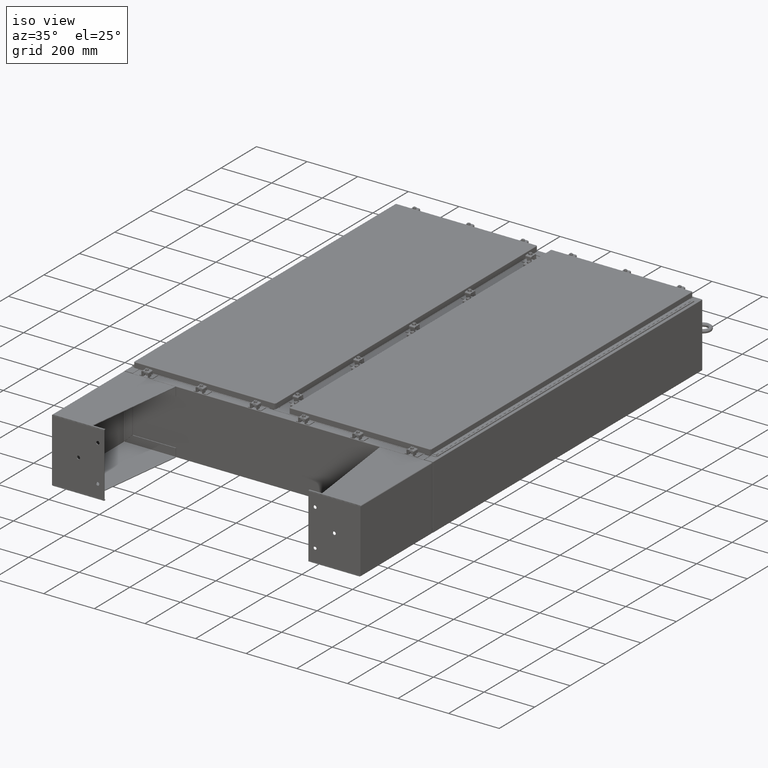
[diagram: clean part render]
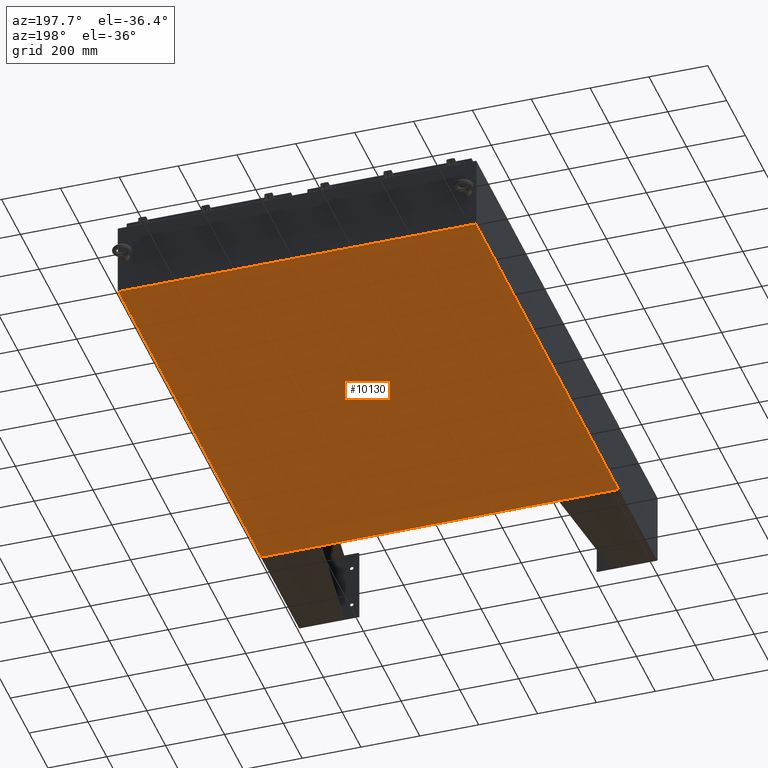
[diagram: tour spotlight — one face highlighted and labeled with its STEP entity id]
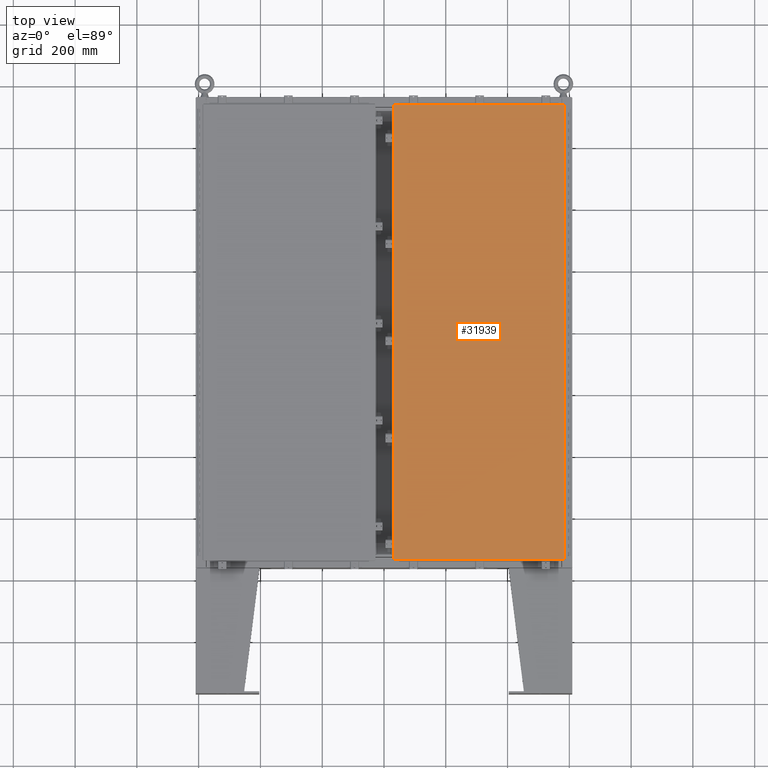
[diagram: tour spotlight — one face highlighted and labeled with its STEP entity id]
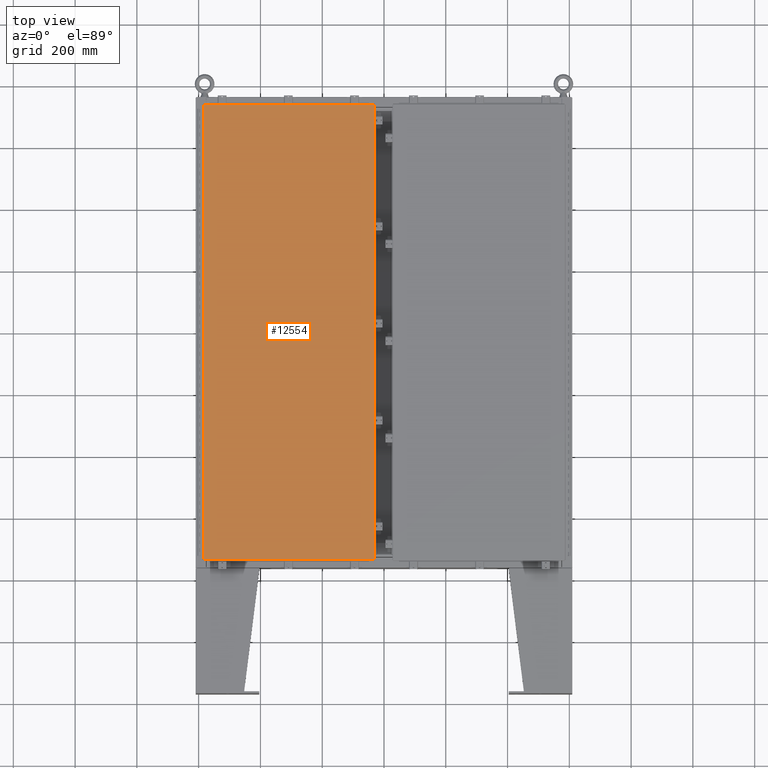
[diagram: tour spotlight — one face highlighted and labeled with its STEP entity id]
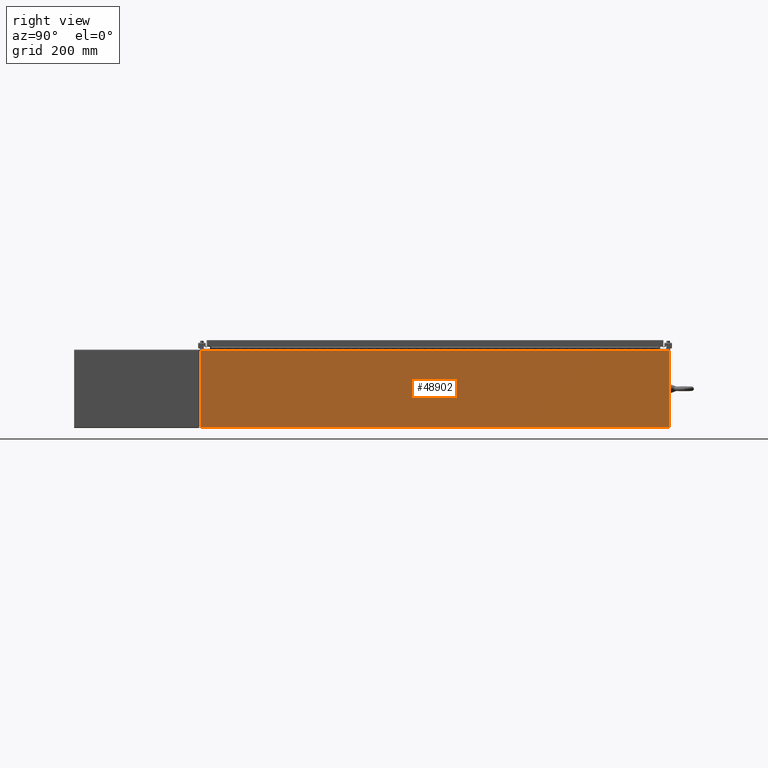
[diagram: tour spotlight — one face highlighted and labeled with its STEP entity id]
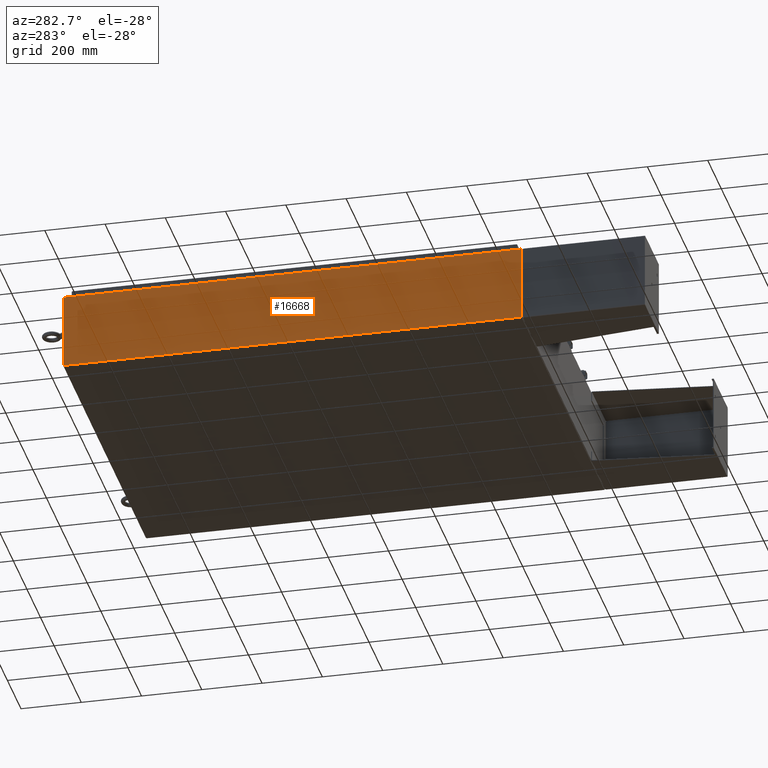
[diagram: tour spotlight — one face highlighted and labeled with its STEP entity id]
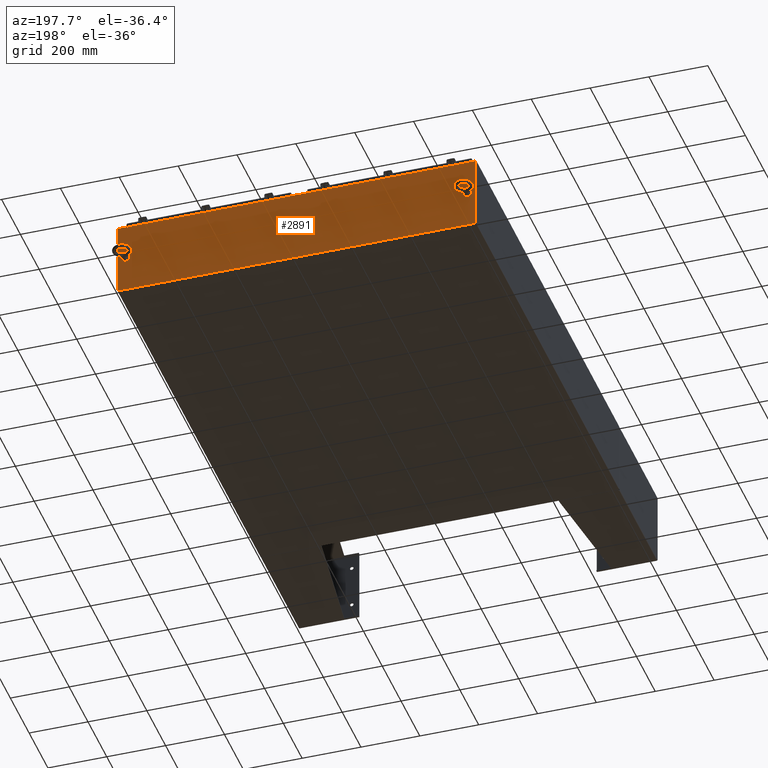
[diagram: tour spotlight — one face highlighted and labeled with its STEP entity id]
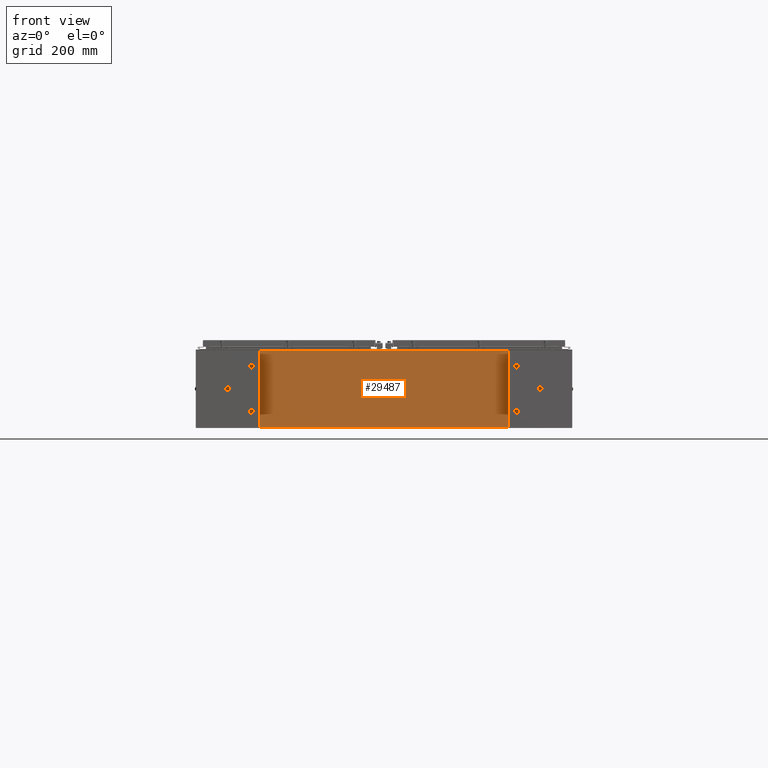
[diagram: tour spotlight — one face highlighted and labeled with its STEP entity id]
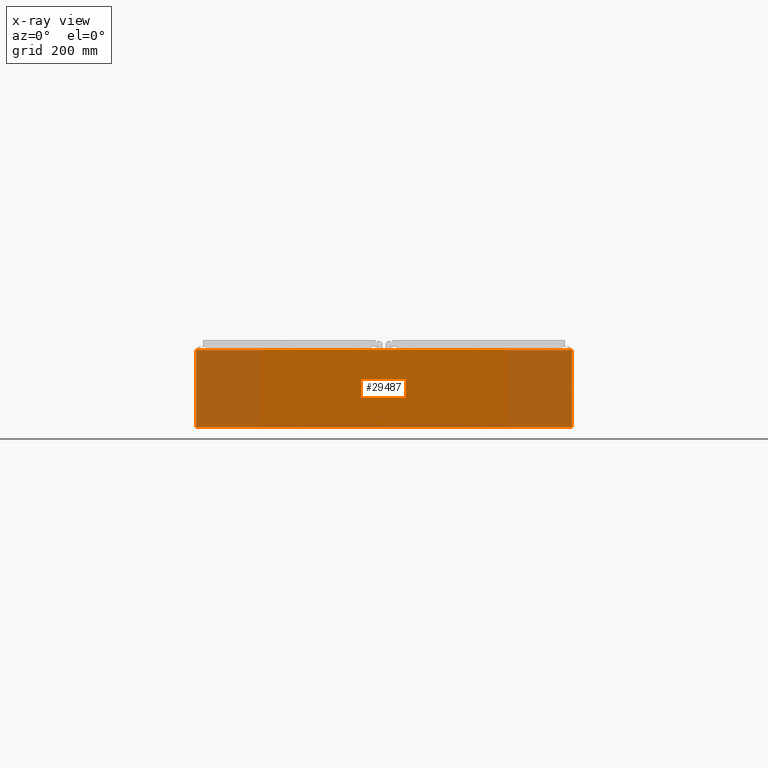
[diagram: x-ray of the same camera — body ghosted, this tour face saturated]
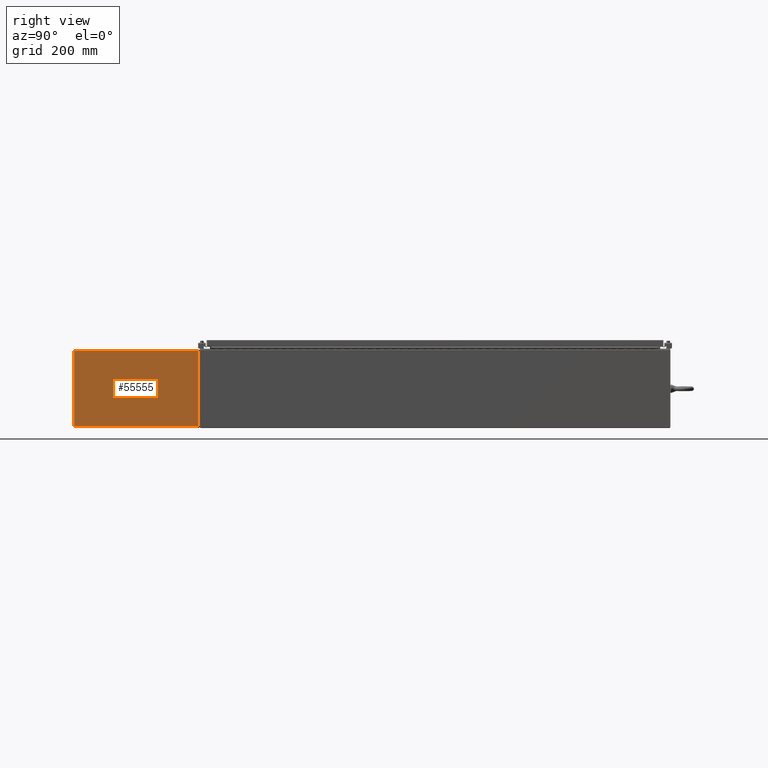
[diagram: tour spotlight — one face highlighted and labeled with its STEP entity id]
A machine part: a face-by-face anatomy tour. The part has 6348 B-rep faces; the first image is the clean iso view, then the 8 largest visible faces are spotlighted one at a time (largest first), each with its STEP entity span.

Face 1 — auxiliary view, entity #10130. In plain terms, the highlighted planar face has unit normal (0, 0, -1).
Definition (entity closure, byte-faithful):
#5577 = VECTOR ( 'NONE', #37959, 39.37007874015748100 ) ;
#5719 = VECTOR ( 'NONE', #44782, 39.37007874015748100 ) ;
#7950 = CARTESIAN_POINT ( 'NONE',  ( 23.91230000000000200, 29.92529999999999300, -0.07469999999999994700 ) ) ;
#8265 = AXIS2_PLACEMENT_3D ( 'NONE', #20712, #57594, #26036 ) ;
#10130 = ADVANCED_FACE ( 'NONE', ( #41501 ), #52277, .T. ) ;
#15097 = CARTESIAN_POINT ( 'NONE',  ( -24.00000000000000700, -29.92530000000000400, -0.07470000000000000300 ) ) ;
#15761 = VERTEX_POINT ( 'NONE', #40204 ) ;
#20712 = CARTESIAN_POINT ( 'NONE',  ( 0.0000000000000000000, 0.0000000000000000000, -0.07470000000000000300 ) ) ;
#21751 = CARTESIAN_POINT ( 'NONE',  ( 23.91229999999998800, -29.92530000000000400, -0.07470000000000000300 ) ) ;
#22023 = CARTESIAN_POINT ( 'NONE',  ( -24.00000000000000700, 29.92529999999999300, -0.07470000000000000300 ) ) ;
#23685 = LINE ( 'NONE', #15097, #60765 ) ;
#26036 = DIRECTION ( 'NONE',  ( -1.000000000000000000, 0.0000000000000000000, -0.0000000000000000000 ) ) ;
#28905 = ORIENTED_EDGE ( 'NONE', *, *, #40077, .F. ) ;
#30545 = ORIENTED_EDGE ( 'NONE', *, *, #53410, .T. ) ;
#35243 = VECTOR ( 'NONE', #37978, 39.37007874015748100 ) ;
#37755 = CARTESIAN_POINT ( 'NONE',  ( -23.91230000000000900, -29.92529999999999300, -0.07469999999999994700 ) ) ;
#37959 = DIRECTION ( 'NONE',  ( -1.000000000000000000, -0.0000000000000000000, -0.0000000000000000000 ) ) ;
#37978 = DIRECTION ( 'NONE',  ( -0.0000000000000000000, 1.000000000000000000, -0.0000000000000000000 ) ) ;
#40077 = EDGE_CURVE ( 'NONE', #40447, #61800, #23685, .T. ) ;
#40204 = CARTESIAN_POINT ( 'NONE',  ( -23.91230000000000900, 29.92529999999998600, -0.07470000000000000300 ) ) ;
#40447 = VERTEX_POINT ( 'NONE', #44553 ) ;
#41501 = FACE_OUTER_BOUND ( 'NONE', #62120, .T. ) ;
#42438 = VERTEX_POINT ( 'NONE', #46666 ) ;
#44553 = CARTESIAN_POINT ( 'NONE',  ( -23.91230000000000900, -29.92529999999998600, -0.07469999999999994700 ) ) ;
#44782 = DIRECTION ( 'NONE',  ( -0.0000000000000000000, -1.000000000000000000, -0.0000000000000000000 ) ) ;
#46165 = EDGE_CURVE ( 'NONE', #42438, #15761, #47600, .T. ) ;
#46666 = CARTESIAN_POINT ( 'NONE',  ( 23.91230000000000200, 29.92529999999999300, -0.07469999999999994700 ) ) ;
#47600 = LINE ( 'NONE', #22023, #5577 ) ;
#47604 = LINE ( 'NONE', #37755, #35243 ) ;
#52277 = PLANE ( 'NONE',  #8265 ) ;
#53410 = EDGE_CURVE ( 'NONE', #42438, #61800, #58442, .T. ) ;
#54358 = EDGE_CURVE ( 'NONE', #40447, #15761, #47604, .T. ) ;
#57256 = DIRECTION ( 'NONE',  ( 1.000000000000000000, 0.0000000000000000000, 0.0000000000000000000 ) ) ;
#57594 = DIRECTION ( 'NONE',  ( 0.0000000000000000000, 0.0000000000000000000, -1.000000000000000000 ) ) ;
#58442 = LINE ( 'NONE', #7950, #5719 ) ;
#59948 = ORIENTED_EDGE ( 'NONE', *, *, #46165, .F. ) ;
#60765 = VECTOR ( 'NONE', #57256, 39.37007874015748100 ) ;
#61800 = VERTEX_POINT ( 'NONE', #21751 ) ;
#62120 = EDGE_LOOP ( 'NONE', ( #28905, #64825, #59948, #30545 ) ) ;
#64825 = ORIENTED_EDGE ( 'NONE', *, *, #54358, .T. ) ;

Face 2 — top view, entity #31939. In plain terms, the highlighted planar face has unit normal (0, 0, -1).
Definition (entity closure, byte-faithful):
#1658 = DIRECTION ( 'NONE',  ( -1.000000000000000000, -0.0000000000000000000, -0.0000000000000000000 ) ) ;
#10238 = EDGE_CURVE ( 'NONE', #12918, #35232, #33214, .T. ) ;
#10392 = ORIENTED_EDGE ( 'NONE', *, *, #40284, .T. ) ;
#10519 = LINE ( 'NONE', #48020, #50837 ) ;
#11041 = DIRECTION ( 'NONE',  ( -1.000000000000000000, 0.0000000000000000000, -0.0000000000000000000 ) ) ;
#12833 = VECTOR ( 'NONE', #65583, 39.37007874015748100 ) ;
#12918 = VERTEX_POINT ( 'NONE', #55380 ) ;
#18310 = EDGE_CURVE ( 'NONE', #35232, #52287, #26821, .T. ) ;
#19528 = CARTESIAN_POINT ( 'NONE',  ( 10.91779999999999600, -29.01819999999999300, 0.0000000000000000000 ) ) ;
#21776 = VERTEX_POINT ( 'NONE', #43249 ) ;
#26821 = LINE ( 'NONE', #33815, #12833 ) ;
#29089 = EDGE_LOOP ( 'NONE', ( #58336, #10392, #42927, #45543 ) ) ;
#30281 = VECTOR ( 'NONE', #1658, 39.37007874015748100 ) ;
#31939 = ADVANCED_FACE ( 'NONE', ( #55050 ), #58219, .F. ) ;
#31974 = CARTESIAN_POINT ( 'NONE',  ( 0.0000000000000000000, 0.0000000000000000000, 0.0000000000000000000 ) ) ;
#33214 = LINE ( 'NONE', #53411, #48864 ) ;
#33815 = CARTESIAN_POINT ( 'NONE',  ( -10.91780000000000200, -29.01820000000000000, 2.185478394931410600E-015 ) ) ;
#35232 = VERTEX_POINT ( 'NONE', #57996 ) ;
#40284 = EDGE_CURVE ( 'NONE', #52287, #21776, #10519, .T. ) ;
#42571 = DIRECTION ( 'NONE',  ( 0.0000000000000000000, 0.0000000000000000000, -1.000000000000000000 ) ) ;
#42927 = ORIENTED_EDGE ( 'NONE', *, *, #60697, .T. ) ;
#43249 = CARTESIAN_POINT ( 'NONE',  ( 10.91779999999999600, 29.01820000000000700, 2.185478394931410600E-015 ) ) ;
#43824 = CARTESIAN_POINT ( 'NONE',  ( 10.91779999999999600, 29.01820000000000700, 2.185478394931410600E-015 ) ) ;
#45543 = ORIENTED_EDGE ( 'NONE', *, *, #10238, .T. ) ;
#48020 = CARTESIAN_POINT ( 'NONE',  ( 10.91779999999999600, -29.01819999999999000, 0.0000000000000000000 ) ) ;
#48864 = VECTOR ( 'NONE', #58502, 39.37007874015748100 ) ;
#50837 = VECTOR ( 'NONE', #53290, 39.37007874015748100 ) ;
#52287 = VERTEX_POINT ( 'NONE', #19528 ) ;
#53290 = DIRECTION ( 'NONE',  ( 0.0000000000000000000, 1.000000000000000000, 0.0000000000000000000 ) ) ;
#53411 = CARTESIAN_POINT ( 'NONE',  ( -10.91780000000000200, 29.01820000000000000, 0.0000000000000000000 ) ) ;
#55050 = FACE_OUTER_BOUND ( 'NONE', #29089, .T. ) ;
#55380 = CARTESIAN_POINT ( 'NONE',  ( -10.91780000000000200, 29.01820000000000400, 0.0000000000000000000 ) ) ;
#57996 = CARTESIAN_POINT ( 'NONE',  ( -10.91780000000000200, -29.01820000000000000, 2.185478394931410600E-015 ) ) ;
#58219 = PLANE ( 'NONE',  #64199 ) ;
#58336 = ORIENTED_EDGE ( 'NONE', *, *, #18310, .T. ) ;
#58502 = DIRECTION ( 'NONE',  ( 0.0000000000000000000, -1.000000000000000000, 0.0000000000000000000 ) ) ;
#59927 = LINE ( 'NONE', #43824, #30281 ) ;
#60697 = EDGE_CURVE ( 'NONE', #21776, #12918, #59927, .T. ) ;
#64199 = AXIS2_PLACEMENT_3D ( 'NONE', #31974, #42571, #11041 ) ;
#65583 = DIRECTION ( 'NONE',  ( 1.000000000000000000, -0.0000000000000000000, -0.0000000000000000000 ) ) ;

Face 3 — top view, entity #12554. In plain terms, the highlighted planar face has unit normal (0, 0, -1).
Definition (entity closure, byte-faithful):
#1624 = DIRECTION ( 'NONE',  ( 0.0000000000000000000, 0.0000000000000000000, -1.000000000000000000 ) ) ;
#1834 = VERTEX_POINT ( 'NONE', #14908 ) ;
#1840 = CARTESIAN_POINT ( 'NONE',  ( -10.91780000000000500, -29.01820000000000000, 2.185478394931410600E-015 ) ) ;
#5972 = LINE ( 'NONE', #31243, #32326 ) ;
#6333 = AXIS2_PLACEMENT_3D ( 'NONE', #12001, #1624, #38484 ) ;
#6521 = VERTEX_POINT ( 'NONE', #57400 ) ;
#7942 = EDGE_LOOP ( 'NONE', ( #18189, #44305, #29170, #13883 ) ) ;
#9417 = EDGE_CURVE ( 'NONE', #42273, #55471, #23409, .T. ) ;
#12001 = CARTESIAN_POINT ( 'NONE',  ( 0.0000000000000000000, 0.0000000000000000000, 0.0000000000000000000 ) ) ;
#12554 = ADVANCED_FACE ( 'NONE', ( #39540 ), #64686, .F. ) ;
#13883 = ORIENTED_EDGE ( 'NONE', *, *, #9417, .T. ) ;
#14908 = CARTESIAN_POINT ( 'NONE',  ( 10.91779999999999800, -29.01819999999999300, 0.0000000000000000000 ) ) ;
#18189 = ORIENTED_EDGE ( 'NONE', *, *, #21964, .T. ) ;
#20613 = CARTESIAN_POINT ( 'NONE',  ( 10.91779999999999800, 29.01820000000000700, 2.185478394931410600E-015 ) ) ;
#20905 = VECTOR ( 'NONE', #36321, 39.37007874015748100 ) ;
#21964 = EDGE_CURVE ( 'NONE', #55471, #1834, #36480, .T. ) ;
#23409 = LINE ( 'NONE', #61732, #63797 ) ;
#24088 = VECTOR ( 'NONE', #24779, 39.37007874015748100 ) ;
#24779 = DIRECTION ( 'NONE',  ( 1.000000000000000000, -0.0000000000000000000, -0.0000000000000000000 ) ) ;
#25922 = DIRECTION ( 'NONE',  ( 0.0000000000000000000, 1.000000000000000000, 0.0000000000000000000 ) ) ;
#29170 = ORIENTED_EDGE ( 'NONE', *, *, #55851, .T. ) ;
#29635 = CARTESIAN_POINT ( 'NONE',  ( -10.91780000000000500, 29.01820000000000400, 0.0000000000000000000 ) ) ;
#31243 = CARTESIAN_POINT ( 'NONE',  ( 10.91779999999999800, -29.01819999999999000, 0.0000000000000000000 ) ) ;
#32326 = VECTOR ( 'NONE', #25922, 39.37007874015748100 ) ;
#36321 = DIRECTION ( 'NONE',  ( -1.000000000000000000, -0.0000000000000000000, -0.0000000000000000000 ) ) ;
#36480 = LINE ( 'NONE', #61629, #24088 ) ;
#38484 = DIRECTION ( 'NONE',  ( -1.000000000000000000, 0.0000000000000000000, -0.0000000000000000000 ) ) ;
#39540 = FACE_OUTER_BOUND ( 'NONE', #7942, .T. ) ;
#42273 = VERTEX_POINT ( 'NONE', #29635 ) ;
#42477 = EDGE_CURVE ( 'NONE', #1834, #6521, #5972, .T. ) ;
#44305 = ORIENTED_EDGE ( 'NONE', *, *, #42477, .T. ) ;
#48945 = LINE ( 'NONE', #20613, #20905 ) ;
#55471 = VERTEX_POINT ( 'NONE', #1840 ) ;
#55851 = EDGE_CURVE ( 'NONE', #6521, #42273, #48945, .T. ) ;
#56436 = DIRECTION ( 'NONE',  ( 0.0000000000000000000, -1.000000000000000000, 0.0000000000000000000 ) ) ;
#57400 = CARTESIAN_POINT ( 'NONE',  ( 10.91779999999999800, 29.01820000000000700, 2.185478394931410600E-015 ) ) ;
#61629 = CARTESIAN_POINT ( 'NONE',  ( -10.91780000000000500, -29.01820000000000000, 2.185478394931410600E-015 ) ) ;
#61732 = CARTESIAN_POINT ( 'NONE',  ( -10.91780000000000500, 29.01820000000000000, 0.0000000000000000000 ) ) ;
#63797 = VECTOR ( 'NONE', #56436, 39.37007874015748100 ) ;
#64686 = PLANE ( 'NONE',  #6333 ) ;

Face 4 — right view, entity #48902. In plain terms, the highlighted planar face has unit normal (-1, -0, 0).
Definition (entity closure, byte-faithful):
#2607 = VERTEX_POINT ( 'NONE', #64067 ) ;
#2704 = DIRECTION ( 'NONE',  ( -0.0000000000000000000, -1.000000000000000000, -0.0000000000000000000 ) ) ;
#2823 = CARTESIAN_POINT ( 'NONE',  ( 24.00000000000003200, -29.92529999999998900, 9.837599999999991200 ) ) ;
#5668 = CARTESIAN_POINT ( 'NONE',  ( 23.99999999999999600, -29.92529999999999300, -8.545600010695486900E-014 ) ) ;
#10114 = DIRECTION ( 'NONE',  ( 1.296229272977838700E-031, -1.000000000000000000, -4.525760317464326200E-046 ) ) ;
#13638 = CARTESIAN_POINT ( 'NONE',  ( 23.99999999999999600, 29.92529999999998900, 0.01299999999999766100 ) ) ;
#13711 = EDGE_CURVE ( 'NONE', #63970, #43916, #26137, .T. ) ;
#16335 = CARTESIAN_POINT ( 'NONE',  ( 23.99999999999999600, -29.92529999999999300, 0.01299999999999765100 ) ) ;
#20096 = EDGE_CURVE ( 'NONE', #47183, #43916, #48839, .T. ) ;
#20786 = VECTOR ( 'NONE', #10114, 39.37007874015748100 ) ;
#23984 = CARTESIAN_POINT ( 'NONE',  ( 23.99999999999999600, 3.110950255146812600E-030, -8.545600010695486900E-014 ) ) ;
#26137 = LINE ( 'NONE', #5668, #66521 ) ;
#26344 = VECTOR ( 'NONE', #66217, 39.37007874015748100 ) ;
#29316 = DIRECTION ( 'NONE',  ( 3.549799435455970600E-015, 0.0000000000000000000, 1.000000000000000000 ) ) ;
#30826 = ORIENTED_EDGE ( 'NONE', *, *, #68043, .T. ) ;
#31746 = LINE ( 'NONE', #34234, #44120 ) ;
#34234 = CARTESIAN_POINT ( 'NONE',  ( 24.00000000000005000, 29.92530000000000000, 9.837599999999998300 ) ) ;
#34659 = CARTESIAN_POINT ( 'NONE',  ( 23.99999999999999600, 29.92529999999998600, -9.873460173768618300E-014 ) ) ;
#41034 = ORIENTED_EDGE ( 'NONE', *, *, #65235, .T. ) ;
#41427 = CARTESIAN_POINT ( 'NONE',  ( 23.99999999999999600, -29.92529999999999300, 0.01299999999999766100 ) ) ;
#42036 = LINE ( 'NONE', #34659, #26344 ) ;
#43916 = VERTEX_POINT ( 'NONE', #16335 ) ;
#44120 = VECTOR ( 'NONE', #2704, 39.37007874015748100 ) ;
#46608 = FACE_OUTER_BOUND ( 'NONE', #48906, .T. ) ;
#47183 = VERTEX_POINT ( 'NONE', #13638 ) ;
#48839 = LINE ( 'NONE', #41427, #20786 ) ;
#48902 = ADVANCED_FACE ( 'NONE', ( #46608 ), #55551, .F. ) ;
#48906 = EDGE_LOOP ( 'NONE', ( #30826, #56068, #53972, #41034 ) ) ;
#53972 = ORIENTED_EDGE ( 'NONE', *, *, #20096, .F. ) ;
#55551 = PLANE ( 'NONE',  #65479 ) ;
#56068 = ORIENTED_EDGE ( 'NONE', *, *, #13711, .T. ) ;
#60834 = DIRECTION ( 'NONE',  ( -1.000000000000000000, -1.296229272977838700E-031, 3.549799435455970600E-015 ) ) ;
#63675 = DIRECTION ( 'NONE',  ( -3.549799435455971000E-015, 0.0000000000000000000, -1.000000000000000000 ) ) ;
#63970 = VERTEX_POINT ( 'NONE', #2823 ) ;
#64067 = CARTESIAN_POINT ( 'NONE',  ( 24.00000000000005000, 29.92530000000000000, 9.837599999999998300 ) ) ;
#65235 = EDGE_CURVE ( 'NONE', #47183, #2607, #42036, .T. ) ;
#65479 = AXIS2_PLACEMENT_3D ( 'NONE', #23984, #60834, #29316 ) ;
#66217 = DIRECTION ( 'NONE',  ( 3.549799435455971000E-015, 4.437249294319963200E-016, 1.000000000000000000 ) ) ;
#66521 = VECTOR ( 'NONE', #63675, 39.37007874015748100 ) ;
#68043 = EDGE_CURVE ( 'NONE', #2607, #63970, #31746, .T. ) ;

Face 5 — auxiliary view, entity #16668. In plain terms, the highlighted planar face has unit normal (1, 0, 0).
Definition (entity closure, byte-faithful):
#631 = LINE ( 'NONE', #6041, #39376 ) ;
#5235 = VECTOR ( 'NONE', #57515, 39.37007874015748100 ) ;
#6041 = CARTESIAN_POINT ( 'NONE',  ( -24.00000000000000700, 29.92529999999998600, 0.01299999999999766100 ) ) ;
#8409 = CARTESIAN_POINT ( 'NONE',  ( -24.00000000000004300, 29.92529999999998200, 9.837599999999994800 ) ) ;
#8662 = EDGE_CURVE ( 'NONE', #65906, #43314, #26003, .T. ) ;
#12015 = VECTOR ( 'NONE', #18515, 39.37007874015748100 ) ;
#14387 = EDGE_LOOP ( 'NONE', ( #40972, #21909, #26436, #43107 ) ) ;
#16658 = DIRECTION ( 'NONE',  ( 3.549799435455969400E-015, 0.0000000000000000000, -1.000000000000000000 ) ) ;
#16668 = ADVANCED_FACE ( 'NONE', ( #17940 ), #50127, .F. ) ;
#17054 = EDGE_CURVE ( 'NONE', #31038, #53220, #24496, .T. ) ;
#17940 = FACE_OUTER_BOUND ( 'NONE', #14387, .T. ) ;
#18515 = DIRECTION ( 'NONE',  ( -3.549799435455969400E-015, 4.437249294319962300E-016, 1.000000000000000000 ) ) ;
#21573 = EDGE_CURVE ( 'NONE', #43314, #31038, #57944, .T. ) ;
#21909 = ORIENTED_EDGE ( 'NONE', *, *, #17054, .T. ) ;
#24496 = LINE ( 'NONE', #53512, #36891 ) ;
#26003 = LINE ( 'NONE', #34208, #12015 ) ;
#26436 = ORIENTED_EDGE ( 'NONE', *, *, #45601, .F. ) ;
#29198 = DIRECTION ( 'NONE',  ( 1.000000000000000000, 0.0000000000000000000, 3.549799435455969400E-015 ) ) ;
#31038 = VERTEX_POINT ( 'NONE', #8409 ) ;
#32284 = DIRECTION ( 'NONE',  ( -0.0000000000000000000, 1.000000000000000000, -0.0000000000000000000 ) ) ;
#34208 = CARTESIAN_POINT ( 'NONE',  ( -24.00000000000000700, -29.92529999999999300, -7.217739847622355500E-014 ) ) ;
#34255 = CARTESIAN_POINT ( 'NONE',  ( -24.00000000000000700, 0.0000000000000000000, -8.545600010695485700E-014 ) ) ;
#36581 = CARTESIAN_POINT ( 'NONE',  ( -24.00000000000005300, -29.92529999999998900, 9.837599999999994800 ) ) ;
#36891 = VECTOR ( 'NONE', #16658, 39.37007874015748100 ) ;
#39376 = VECTOR ( 'NONE', #32284, 39.37007874015748100 ) ;
#40972 = ORIENTED_EDGE ( 'NONE', *, *, #21573, .T. ) ;
#42962 = CARTESIAN_POINT ( 'NONE',  ( -24.00000000000000700, 29.92529999999998600, 0.01299999999999765100 ) ) ;
#43107 = ORIENTED_EDGE ( 'NONE', *, *, #8662, .T. ) ;
#43314 = VERTEX_POINT ( 'NONE', #59904 ) ;
#45601 = EDGE_CURVE ( 'NONE', #65906, #53220, #631, .T. ) ;
#47585 = AXIS2_PLACEMENT_3D ( 'NONE', #34255, #29198, #66026 ) ;
#50127 = PLANE ( 'NONE',  #47585 ) ;
#53220 = VERTEX_POINT ( 'NONE', #42962 ) ;
#53512 = CARTESIAN_POINT ( 'NONE',  ( -24.00000000000000700, 29.92529999999998600, -8.545600010695485700E-014 ) ) ;
#55749 = CARTESIAN_POINT ( 'NONE',  ( -24.00000000000000700, -29.92529999999998900, 0.01299999999999766100 ) ) ;
#57515 = DIRECTION ( 'NONE',  ( 0.0000000000000000000, 1.000000000000000000, 0.0000000000000000000 ) ) ;
#57944 = LINE ( 'NONE', #36581, #5235 ) ;
#59904 = CARTESIAN_POINT ( 'NONE',  ( -24.00000000000005300, -29.92529999999998900, 9.837599999999994800 ) ) ;
#65906 = VERTEX_POINT ( 'NONE', #55749 ) ;
#66026 = DIRECTION ( 'NONE',  ( 3.549799435455969400E-015, 0.0000000000000000000, -1.000000000000000000 ) ) ;

Face 6 — auxiliary view, entity #2891. In plain terms, the highlighted planar face has unit normal (0, -1, 0).
Definition (entity closure, byte-faithful):
#47 = CIRCLE ( 'NONE', #56334, 0.3750000000000008300 ) ;
#782 = FACE_BOUND ( 'NONE', #25194, .T. ) ;
#1462 = VERTEX_POINT ( 'NONE', #7672 ) ;
#2070 = CARTESIAN_POINT ( 'NONE',  ( 23.92529999999998600, 0.0000000000000000000, 4.925300000000000000 ) ) ;
#2202 = EDGE_CURVE ( 'NONE', #1462, #56028, #47, .T. ) ;
#2410 = VERTEX_POINT ( 'NONE', #30985 ) ;
#2447 = DIRECTION ( 'NONE',  ( 0.0000000000000000000, 1.000000000000000000, 0.0000000000000000000 ) ) ;
#2891 = ADVANCED_FACE ( 'NONE', ( #782, #55128, #42809 ), #60610, .F. ) ;
#3040 = DIRECTION ( 'NONE',  ( 1.000000000000000000, 0.0000000000000000000, 0.0000000000000000000 ) ) ;
#4133 = CARTESIAN_POINT ( 'NONE',  ( 22.86330000000001300, 0.0000000000000000000, -0.3750000000000008300 ) ) ;
#5283 = DIRECTION ( 'NONE',  ( -0.0000000000000000000, -0.0000000000000000000, 1.000000000000000000 ) ) ;
#5439 = DIRECTION ( 'NONE',  ( 0.0000000000000000000, 0.0000000000000000000, -1.000000000000000000 ) ) ;
#6452 = DIRECTION ( 'NONE',  ( 0.0000000000000000000, 0.0000000000000000000, 1.000000000000000000 ) ) ;
#7265 = AXIS2_PLACEMENT_3D ( 'NONE', #57068, #25501, #62354 ) ;
#7497 = DIRECTION ( 'NONE',  ( 1.000000000000000000, 0.0000000000000000000, 0.0000000000000000000 ) ) ;
#7672 = CARTESIAN_POINT ( 'NONE',  ( -22.86330000000001300, 0.0000000000000000000, -0.3750000000000008300 ) ) ;
#7683 = EDGE_CURVE ( 'NONE', #22449, #19023, #27771, .T. ) ;
#8072 = VECTOR ( 'NONE', #6452, 39.37007874015748100 ) ;
#8086 = VERTEX_POINT ( 'NONE', #16366 ) ;
#8372 = CARTESIAN_POINT ( 'NONE',  ( 0.0000000000000000000, 0.0000000000000000000, 0.0000000000000000000 ) ) ;
#8732 = VERTEX_POINT ( 'NONE', #40215 ) ;
#8745 = ORIENTED_EDGE ( 'NONE', *, *, #67841, .T. ) ;
#9462 = VECTOR ( 'NONE', #20889, 39.37007874015748100 ) ;
#10136 = CARTESIAN_POINT ( 'NONE',  ( -23.92530000000001400, 0.0000000000000000000, 4.925300000000000000 ) ) ;
#10638 = CARTESIAN_POINT ( 'NONE',  ( 22.63719999999997900, 0.0000000000000000000, 4.912300000000000100 ) ) ;
#11289 = VERTEX_POINT ( 'NONE', #43724 ) ;
#11454 = CARTESIAN_POINT ( 'NONE',  ( 22.65587499999998000, 0.0000000000000000000, 4.874950000000000100 ) ) ;
#12359 = CARTESIAN_POINT ( 'NONE',  ( -22.86330000000001300, 0.0000000000000000000, 0.3750000000000008300 ) ) ;
#13267 = EDGE_CURVE ( 'NONE', #56028, #1462, #66592, .T. ) ;
#13394 = DIRECTION ( 'NONE',  ( 0.0000000000000000000, 1.000000000000000000, -0.0000000000000000000 ) ) ;
#13578 = EDGE_CURVE ( 'NONE', #52915, #11289, #22022, .T. ) ;
#14475 = EDGE_CURVE ( 'NONE', #8732, #23379, #65125, .T. ) ;
#14586 = VERTEX_POINT ( 'NONE', #30203 ) ;
#15009 = EDGE_CURVE ( 'NONE', #61307, #8086, #34688, .T. ) ;
#16366 = CARTESIAN_POINT ( 'NONE',  ( 23.92529999999998600, 0.0000000000000000000, -4.925300000000000000 ) ) ;
#16702 = DIRECTION ( 'NONE',  ( 0.0000000000000000000, 0.0000000000000000000, -1.000000000000000000 ) ) ;
#17657 = CARTESIAN_POINT ( 'NONE',  ( 23.92529999999998600, 0.0000000000000000000, 4.925300000000000000 ) ) ;
#17861 = VECTOR ( 'NONE', #7497, 39.37007874015748100 ) ;
#17989 = CARTESIAN_POINT ( 'NONE',  ( 22.63719999999997900, 0.0000000000000000000, 0.0000000000000000000 ) ) ;
#18883 = DIRECTION ( 'NONE',  ( 0.0000000000000000000, -0.0000000000000000000, -1.000000000000000000 ) ) ;
#19023 = VERTEX_POINT ( 'NONE', #42708 ) ;
#19724 = ORIENTED_EDGE ( 'NONE', *, *, #2202, .F. ) ;
#20337 = AXIS2_PLACEMENT_3D ( 'NONE', #11454, #48280, #16702 ) ;
#20889 = DIRECTION ( 'NONE',  ( 1.000000000000000000, 0.0000000000000000000, 0.0000000000000000000 ) ) ;
#21527 = EDGE_CURVE ( 'NONE', #23379, #8732, #47244, .T. ) ;
#22022 = LINE ( 'NONE', #27366, #8072 ) ;
#22404 = CARTESIAN_POINT ( 'NONE',  ( 22.67454999999997900, 0.0000000000000000000, 0.0000000000000000000 ) ) ;
#22410 = DIRECTION ( 'NONE',  ( 0.0000000000000000000, 1.000000000000000000, 0.0000000000000000000 ) ) ;
#22449 = VERTEX_POINT ( 'NONE', #33710 ) ;
#23379 = VERTEX_POINT ( 'NONE', #4133 ) ;
#23853 = CARTESIAN_POINT ( 'NONE',  ( -23.92530000000001400, 0.0000000000000000000, 4.925300000000000000 ) ) ;
#24127 = AXIS2_PLACEMENT_3D ( 'NONE', #8372, #50452, #18883 ) ;
#25194 = EDGE_LOOP ( 'NONE', ( #34537, #35004 ) ) ;
#25501 = DIRECTION ( 'NONE',  ( 0.0000000000000000000, 1.000000000000000000, -0.0000000000000000000 ) ) ;
#26792 = CARTESIAN_POINT ( 'NONE',  ( -22.65587500000000200, 0.0000000000000000000, 4.874950000000000100 ) ) ;
#27366 = CARTESIAN_POINT ( 'NONE',  ( -22.67455000000000000, 0.0000000000000000000, 0.0000000000000000000 ) ) ;
#27534 = VERTEX_POINT ( 'NONE', #37523 ) ;
#27771 = LINE ( 'NONE', #22404, #54135 ) ;
#28492 = VECTOR ( 'NONE', #5283, 39.37007874015748100 ) ;
#30157 = LINE ( 'NONE', #23853, #28492 ) ;
#30203 = CARTESIAN_POINT ( 'NONE',  ( -23.92530000000001400, 0.0000000000000000000, -4.925300000000000000 ) ) ;
#30531 = ORIENTED_EDGE ( 'NONE', *, *, #15009, .T. ) ;
#30985 = CARTESIAN_POINT ( 'NONE',  ( 22.63719999999997900, 0.0000000000000000000, 4.874950000000000100 ) ) ;
#32105 = DIRECTION ( 'NONE',  ( 0.0000000000000000000, 0.0000000000000000000, -1.000000000000000000 ) ) ;
#32321 = LINE ( 'NONE', #66121, #58682 ) ;
#33243 = EDGE_LOOP ( 'NONE', ( #36812, #19724 ) ) ;
#33710 = CARTESIAN_POINT ( 'NONE',  ( 22.67454999999995700, 0.0000000000000000000, 4.925300000000000000 ) ) ;
#33722 = CARTESIAN_POINT ( 'NONE',  ( -22.63720000000000700, 0.0000000000000000000, 4.912300000000000100 ) ) ;
#33990 = CARTESIAN_POINT ( 'NONE',  ( -22.86330000000001300, 0.0000000000000000000, 0.0000000000000000000 ) ) ;
#34064 = VERTEX_POINT ( 'NONE', #37455 ) ;
#34537 = ORIENTED_EDGE ( 'NONE', *, *, #14475, .F. ) ;
#34606 = ORIENTED_EDGE ( 'NONE', *, *, #43315, .T. ) ;
#34688 = LINE ( 'NONE', #2070, #36346 ) ;
#34980 = ORIENTED_EDGE ( 'NONE', *, *, #47066, .F. ) ;
#35004 = ORIENTED_EDGE ( 'NONE', *, *, #21527, .F. ) ;
#35207 = EDGE_CURVE ( 'NONE', #59865, #11289, #37469, .T. ) ;
#36346 = VECTOR ( 'NONE', #59830, 39.37007874015748100 ) ;
#36812 = ORIENTED_EDGE ( 'NONE', *, *, #13267, .F. ) ;
#36919 = AXIS2_PLACEMENT_3D ( 'NONE', #44964, #13394, #50218 ) ;
#37455 = CARTESIAN_POINT ( 'NONE',  ( -22.63720000000000400, 0.0000000000000000000, 4.912300000000000100 ) ) ;
#37469 = LINE ( 'NONE', #10136, #9462 ) ;
#37523 = CARTESIAN_POINT ( 'NONE',  ( -22.63720000000000400, 0.0000000000000000000, 4.874950000000000100 ) ) ;
#38997 = DIRECTION ( 'NONE',  ( -1.000000000000000000, -0.0000000000000000000, -0.0000000000000000000 ) ) ;
#39325 = DIRECTION ( 'NONE',  ( 0.0000000000000000000, 0.0000000000000000000, 1.000000000000000000 ) ) ;
#40215 = CARTESIAN_POINT ( 'NONE',  ( 22.86330000000001300, 0.0000000000000000000, 0.3750000000000008300 ) ) ;
#40422 = EDGE_CURVE ( 'NONE', #34064, #49178, #58272, .T. ) ;
#40493 = VECTOR ( 'NONE', #38997, 39.37007874015748100 ) ;
#41844 = LINE ( 'NONE', #47560, #68176 ) ;
#42708 = CARTESIAN_POINT ( 'NONE',  ( 22.67454999999997900, 0.0000000000000000000, 4.874950000000000100 ) ) ;
#42809 = FACE_OUTER_BOUND ( 'NONE', #50013, .T. ) ;
#43016 = ORIENTED_EDGE ( 'NONE', *, *, #35207, .T. ) ;
#43315 = EDGE_CURVE ( 'NONE', #8086, #14586, #56090, .T. ) ;
#43422 = DIRECTION ( 'NONE',  ( 0.0000000000000000000, 0.0000000000000000000, -1.000000000000000000 ) ) ;
#43724 = CARTESIAN_POINT ( 'NONE',  ( -22.67455000000000000, 0.0000000000000000000, 4.925300000000000000 ) ) ;
#44964 = CARTESIAN_POINT ( 'NONE',  ( 22.86330000000001300, 0.0000000000000000000, 0.0000000000000000000 ) ) ;
#45101 = EDGE_CURVE ( 'NONE', #27534, #52915, #53380, .T. ) ;
#45764 = CARTESIAN_POINT ( 'NONE',  ( -22.67455000000000000, 0.0000000000000000000, 4.874950000000000100 ) ) ;
#46214 = CIRCLE ( 'NONE', #20337, 0.01867499999999949400 ) ;
#47066 = EDGE_CURVE ( 'NONE', #2410, #49178, #66444, .T. ) ;
#47244 = CIRCLE ( 'NONE', #7265, 0.3750000000000008300 ) ;
#47560 = CARTESIAN_POINT ( 'NONE',  ( -22.63720000000000400, 0.0000000000000000000, 0.0000000000000000000 ) ) ;
#48280 = DIRECTION ( 'NONE',  ( -0.0000000000000000000, 1.000000000000000000, -0.0000000000000000000 ) ) ;
#49178 = VERTEX_POINT ( 'NONE', #10638 ) ;
#50013 = EDGE_LOOP ( 'NONE', ( #50676, #65819, #67773, #56082, #34980, #54234, #58232, #61142, #30531, #34606, #8745, #43016 ) ) ;
#50218 = DIRECTION ( 'NONE',  ( 0.0000000000000000000, 0.0000000000000000000, -1.000000000000000000 ) ) ;
#50452 = DIRECTION ( 'NONE',  ( 0.0000000000000000000, -1.000000000000000000, 0.0000000000000000000 ) ) ;
#50676 = ORIENTED_EDGE ( 'NONE', *, *, #13578, .F. ) ;
#50746 = VECTOR ( 'NONE', #54848, 39.37007874015748100 ) ;
#52915 = VERTEX_POINT ( 'NONE', #45764 ) ;
#53094 = AXIS2_PLACEMENT_3D ( 'NONE', #53973, #22410, #59269 ) ;
#53232 = CARTESIAN_POINT ( 'NONE',  ( -23.92530000000001400, 0.0000000000000000000, 4.925300000000000000 ) ) ;
#53380 = CIRCLE ( 'NONE', #55959, 0.01867499999999949400 ) ;
#53973 = CARTESIAN_POINT ( 'NONE',  ( -22.86330000000001300, 0.0000000000000000000, 0.0000000000000000000 ) ) ;
#54135 = VECTOR ( 'NONE', #43422, 39.37007874015748100 ) ;
#54234 = ORIENTED_EDGE ( 'NONE', *, *, #64932, .F. ) ;
#54848 = DIRECTION ( 'NONE',  ( 0.0000000000000000000, 0.0000000000000000000, 1.000000000000000000 ) ) ;
#55128 = FACE_BOUND ( 'NONE', #33243, .T. ) ;
#55959 = AXIS2_PLACEMENT_3D ( 'NONE', #26792, #63638, #32105 ) ;
#56028 = VERTEX_POINT ( 'NONE', #12359 ) ;
#56082 = ORIENTED_EDGE ( 'NONE', *, *, #40422, .T. ) ;
#56090 = LINE ( 'NONE', #65188, #40493 ) ;
#56334 = AXIS2_PLACEMENT_3D ( 'NONE', #33990, #2447, #39325 ) ;
#57068 = CARTESIAN_POINT ( 'NONE',  ( 22.86330000000001300, 0.0000000000000000000, 0.0000000000000000000 ) ) ;
#58232 = ORIENTED_EDGE ( 'NONE', *, *, #7683, .F. ) ;
#58272 = LINE ( 'NONE', #33722, #17861 ) ;
#58682 = VECTOR ( 'NONE', #3040, 39.37007874015748100 ) ;
#59269 = DIRECTION ( 'NONE',  ( 0.0000000000000000000, 0.0000000000000000000, 1.000000000000000000 ) ) ;
#59830 = DIRECTION ( 'NONE',  ( 0.0000000000000000000, 0.0000000000000000000, -1.000000000000000000 ) ) ;
#59865 = VERTEX_POINT ( 'NONE', #53232 ) ;
#60610 = PLANE ( 'NONE',  #24127 ) ;
#61142 = ORIENTED_EDGE ( 'NONE', *, *, #63995, .T. ) ;
#61307 = VERTEX_POINT ( 'NONE', #17657 ) ;
#62354 = DIRECTION ( 'NONE',  ( 0.0000000000000000000, 0.0000000000000000000, -1.000000000000000000 ) ) ;
#63638 = DIRECTION ( 'NONE',  ( -0.0000000000000000000, 1.000000000000000000, -0.0000000000000000000 ) ) ;
#63995 = EDGE_CURVE ( 'NONE', #22449, #61307, #32321, .T. ) ;
#64932 = EDGE_CURVE ( 'NONE', #19023, #2410, #46214, .T. ) ;
#65125 = CIRCLE ( 'NONE', #36919, 0.3750000000000008300 ) ;
#65188 = CARTESIAN_POINT ( 'NONE',  ( -23.92530000000001400, 0.0000000000000000000, -4.925300000000000000 ) ) ;
#65819 = ORIENTED_EDGE ( 'NONE', *, *, #45101, .F. ) ;
#66121 = CARTESIAN_POINT ( 'NONE',  ( -23.92530000000001400, 0.0000000000000000000, 4.925300000000000000 ) ) ;
#66444 = LINE ( 'NONE', #17989, #50746 ) ;
#66592 = CIRCLE ( 'NONE', #53094, 0.3750000000000008300 ) ;
#66645 = EDGE_CURVE ( 'NONE', #34064, #27534, #41844, .T. ) ;
#67773 = ORIENTED_EDGE ( 'NONE', *, *, #66645, .F. ) ;
#67841 = EDGE_CURVE ( 'NONE', #14586, #59865, #30157, .T. ) ;
#68176 = VECTOR ( 'NONE', #5439, 39.37007874015748100 ) ;

Face 7 — front view, entity #29487. An x-ray twin of the same camera follows (body ghosted, this face saturated) — the face is partly hidden behind the body. In plain terms, the highlighted planar face has unit normal (-0, 1, 0).
Definition (entity closure, byte-faithful):
#478 = EDGE_CURVE ( 'NONE', #67343, #32475, #29118, .T. ) ;
#1668 = VERTEX_POINT ( 'NONE', #49250 ) ;
#2046 = DIRECTION ( 'NONE',  ( 9.721131394294625500E-032, -1.000000000000000000, 0.0000000000000000000 ) ) ;
#2340 = CIRCLE ( 'NONE', #31285, 0.01867499999999949400 ) ;
#2705 = LINE ( 'NONE', #61669, #39805 ) ;
#3986 = VECTOR ( 'NONE', #29735, 39.37007874015748100 ) ;
#4227 = VECTOR ( 'NONE', #7862, 39.37007874015748100 ) ;
#4252 = CARTESIAN_POINT ( 'NONE',  ( 23.92529999999998600, 0.0000000000000000000, -4.925300000000000000 ) ) ;
#7038 = VECTOR ( 'NONE', #10291, 39.37007874015748100 ) ;
#7650 = FACE_OUTER_BOUND ( 'NONE', #38938, .T. ) ;
#7862 = DIRECTION ( 'NONE',  ( 0.0000000000000000000, 0.0000000000000000000, 1.000000000000000000 ) ) ;
#8984 = DIRECTION ( 'NONE',  ( 1.000000000000000000, -9.721131394294623300E-032, 0.0000000000000000000 ) ) ;
#10210 = DIRECTION ( 'NONE',  ( -9.721131394294625500E-032, 1.000000000000000000, -0.0000000000000000000 ) ) ;
#10291 = DIRECTION ( 'NONE',  ( -1.000000000000000000, 9.721131394294623300E-032, 0.0000000000000000000 ) ) ;
#10304 = CARTESIAN_POINT ( 'NONE',  ( 22.63719999999997900, 0.0000000000000000000, 4.874950000000000100 ) ) ;
#10578 = EDGE_CURVE ( 'NONE', #67343, #27249, #2705, .T. ) ;
#10646 = CARTESIAN_POINT ( 'NONE',  ( -22.63720000000000700, -4.370956789862821100E-015, 4.912300000000000100 ) ) ;
#12009 = VERTEX_POINT ( 'NONE', #60168 ) ;
#12098 = ORIENTED_EDGE ( 'NONE', *, *, #29667, .T. ) ;
#12183 = VERTEX_POINT ( 'NONE', #24683 ) ;
#12388 = CARTESIAN_POINT ( 'NONE',  ( 0.0000000000000000000, 0.0000000000000000000, 0.0000000000000000000 ) ) ;
#12527 = ORIENTED_EDGE ( 'NONE', *, *, #22851, .T. ) ;
#12974 = ORIENTED_EDGE ( 'NONE', *, *, #29652, .T. ) ;
#13364 = VECTOR ( 'NONE', #66254, 39.37007874015748100 ) ;
#13735 = CARTESIAN_POINT ( 'NONE',  ( 23.92529999999998600, 0.0000000000000000000, 4.925300000000000000 ) ) ;
#15275 = LINE ( 'NONE', #22930, #53997 ) ;
#15524 = CARTESIAN_POINT ( 'NONE',  ( -23.92530000000001400, 0.0000000000000000000, -4.925300000000000000 ) ) ;
#15895 = DIRECTION ( 'NONE',  ( 1.000000000000000000, -9.721131394294625500E-032, 0.0000000000000000000 ) ) ;
#16947 = ORIENTED_EDGE ( 'NONE', *, *, #478, .F. ) ;
#19233 = DIRECTION ( 'NONE',  ( 1.000000000000000000, -9.721131394294623300E-032, 0.0000000000000000000 ) ) ;
#19826 = LINE ( 'NONE', #34077, #4227 ) ;
#20022 = CARTESIAN_POINT ( 'NONE',  ( 22.67454999999997900, 0.0000000000000000000, 0.0000000000000000000 ) ) ;
#20358 = CARTESIAN_POINT ( 'NONE',  ( 22.63719999999997900, 0.0000000000000000000, 4.912300000000000100 ) ) ;
#20513 = EDGE_CURVE ( 'NONE', #59663, #28030, #20975, .T. ) ;
#20975 = LINE ( 'NONE', #15524, #7038 ) ;
#22851 = EDGE_CURVE ( 'NONE', #34721, #54692, #34832, .T. ) ;
#22930 = CARTESIAN_POINT ( 'NONE',  ( 22.63719999999997900, 0.0000000000000000000, 0.0000000000000000000 ) ) ;
#23006 = ORIENTED_EDGE ( 'NONE', *, *, #37152, .F. ) ;
#24037 = LINE ( 'NONE', #66475, #64421 ) ;
#24275 = ORIENTED_EDGE ( 'NONE', *, *, #60198, .F. ) ;
#24683 = CARTESIAN_POINT ( 'NONE',  ( -23.92530000000001400, 0.0000000000000000000, 4.925300000000000000 ) ) ;
#26384 = VECTOR ( 'NONE', #42332, 39.37007874015748100 ) ;
#26563 = ORIENTED_EDGE ( 'NONE', *, *, #10578, .T. ) ;
#27149 = DIRECTION ( 'NONE',  ( 0.0000000000000000000, 0.0000000000000000000, -1.000000000000000000 ) ) ;
#27249 = VERTEX_POINT ( 'NONE', #29938 ) ;
#27974 = ORIENTED_EDGE ( 'NONE', *, *, #45019, .F. ) ;
#28030 = VERTEX_POINT ( 'NONE', #31006 ) ;
#28247 = DIRECTION ( 'NONE',  ( 0.0000000000000000000, 0.0000000000000000000, 1.000000000000000000 ) ) ;
#29118 = LINE ( 'NONE', #20022, #41495 ) ;
#29487 = ADVANCED_FACE ( 'NONE', ( #7650 ), #59801, .F. ) ;
#29571 = CIRCLE ( 'NONE', #51120, 0.01867499999999949400 ) ;
#29652 = EDGE_CURVE ( 'NONE', #27249, #59663, #55368, .T. ) ;
#29667 = EDGE_CURVE ( 'NONE', #12183, #1668, #24037, .T. ) ;
#29735 = DIRECTION ( 'NONE',  ( 0.0000000000000000000, 0.0000000000000000000, -1.000000000000000000 ) ) ;
#29938 = CARTESIAN_POINT ( 'NONE',  ( 23.92529999999998600, 0.0000000000000000000, 4.925300000000000000 ) ) ;
#30641 = VERTEX_POINT ( 'NONE', #10304 ) ;
#31006 = CARTESIAN_POINT ( 'NONE',  ( -23.92530000000001400, 0.0000000000000000000, -4.925300000000000000 ) ) ;
#31285 = AXIS2_PLACEMENT_3D ( 'NONE', #62964, #31440, #68237 ) ;
#31440 = DIRECTION ( 'NONE',  ( -9.721131394294625500E-032, 1.000000000000000000, -0.0000000000000000000 ) ) ;
#32475 = VERTEX_POINT ( 'NONE', #46651 ) ;
#33646 = LINE ( 'NONE', #66353, #3986 ) ;
#33693 = EDGE_CURVE ( 'NONE', #30641, #54692, #15275, .T. ) ;
#34077 = CARTESIAN_POINT ( 'NONE',  ( -22.67455000000000000, 0.0000000000000000000, 8.741913579725642300E-015 ) ) ;
#34721 = VERTEX_POINT ( 'NONE', #64246 ) ;
#34832 = LINE ( 'NONE', #10646, #59537 ) ;
#37038 = CARTESIAN_POINT ( 'NONE',  ( -23.92530000000001400, 0.0000000000000000000, 4.925300000000000000 ) ) ;
#37152 = EDGE_CURVE ( 'NONE', #12009, #1668, #19826, .T. ) ;
#37534 = EDGE_CURVE ( 'NONE', #28030, #12183, #66776, .T. ) ;
#38899 = DIRECTION ( 'NONE',  ( 0.0000000000000000000, 0.0000000000000000000, -1.000000000000000000 ) ) ;
#38938 = EDGE_LOOP ( 'NONE', ( #23006, #63782, #24275, #12527, #48561, #27974, #16947, #26563, #12974, #58009, #40596, #12098 ) ) ;
#39105 = VERTEX_POINT ( 'NONE', #53909 ) ;
#39805 = VECTOR ( 'NONE', #8984, 39.37007874015748100 ) ;
#40596 = ORIENTED_EDGE ( 'NONE', *, *, #37534, .T. ) ;
#41495 = VECTOR ( 'NONE', #27149, 39.37007874015748100 ) ;
#41742 = CARTESIAN_POINT ( 'NONE',  ( -22.65587500000000200, 0.0000000000000000000, 4.874950000000009000 ) ) ;
#42332 = DIRECTION ( 'NONE',  ( 0.0000000000000000000, 0.0000000000000000000, 1.000000000000000000 ) ) ;
#44275 = AXIS2_PLACEMENT_3D ( 'NONE', #12388, #2046, #38899 ) ;
#45019 = EDGE_CURVE ( 'NONE', #32475, #30641, #2340, .T. ) ;
#46651 = CARTESIAN_POINT ( 'NONE',  ( 22.67454999999997900, 0.0000000000000000000, 4.874950000000001000 ) ) ;
#47023 = DIRECTION ( 'NONE',  ( 0.0000000000000000000, 0.0000000000000000000, -1.000000000000000000 ) ) ;
#48561 = ORIENTED_EDGE ( 'NONE', *, *, #33693, .F. ) ;
#49250 = CARTESIAN_POINT ( 'NONE',  ( -22.67455000000000000, 0.0000000000000000000, 4.925300000000000000 ) ) ;
#51120 = AXIS2_PLACEMENT_3D ( 'NONE', #41742, #10210, #47023 ) ;
#53657 = CARTESIAN_POINT ( 'NONE',  ( 22.67454999999995700, 0.0000000000000000000, 4.925300000000000000 ) ) ;
#53707 = EDGE_CURVE ( 'NONE', #39105, #12009, #29571, .T. ) ;
#53909 = CARTESIAN_POINT ( 'NONE',  ( -22.63720000000000400, 0.0000000000000000000, 4.874950000000000100 ) ) ;
#53997 = VECTOR ( 'NONE', #28247, 39.37007874015748100 ) ;
#54692 = VERTEX_POINT ( 'NONE', #20358 ) ;
#55368 = LINE ( 'NONE', #13735, #13364 ) ;
#58009 = ORIENTED_EDGE ( 'NONE', *, *, #20513, .T. ) ;
#59537 = VECTOR ( 'NONE', #15895, 39.37007874015748100 ) ;
#59663 = VERTEX_POINT ( 'NONE', #4252 ) ;
#59801 = PLANE ( 'NONE',  #44275 ) ;
#60168 = CARTESIAN_POINT ( 'NONE',  ( -22.67455000000000000, 0.0000000000000000000, 4.874950000000000100 ) ) ;
#60198 = EDGE_CURVE ( 'NONE', #34721, #39105, #33646, .T. ) ;
#61669 = CARTESIAN_POINT ( 'NONE',  ( -23.92530000000001400, 0.0000000000000000000, 4.925300000000000000 ) ) ;
#62964 = CARTESIAN_POINT ( 'NONE',  ( 22.65587499999998000, 0.0000000000000000000, 4.874950000000000100 ) ) ;
#63782 = ORIENTED_EDGE ( 'NONE', *, *, #53707, .F. ) ;
#64246 = CARTESIAN_POINT ( 'NONE',  ( -22.63720000000000400, -4.370956789862821100E-015, 4.912300000000000100 ) ) ;
#64421 = VECTOR ( 'NONE', #19233, 39.37007874015748100 ) ;
#66254 = DIRECTION ( 'NONE',  ( 0.0000000000000000000, 0.0000000000000000000, -1.000000000000000000 ) ) ;
#66353 = CARTESIAN_POINT ( 'NONE',  ( -22.63720000000000400, 0.0000000000000000000, 0.0000000000000000000 ) ) ;
#66475 = CARTESIAN_POINT ( 'NONE',  ( -23.92530000000001400, 0.0000000000000000000, 4.925300000000000000 ) ) ;
#66776 = LINE ( 'NONE', #37038, #26384 ) ;
#67343 = VERTEX_POINT ( 'NONE', #53657 ) ;
#68237 = DIRECTION ( 'NONE',  ( 0.0000000000000000000, 0.0000000000000000000, -1.000000000000000000 ) ) ;

Face 8 — right view, entity #55555. In plain terms, the highlighted planar face has unit normal (1, -0, 0).
Definition (entity closure, byte-faithful):
#6511 = VECTOR ( 'NONE', #31300, 39.37007874015748100 ) ;
#6629 = DIRECTION ( 'NONE',  ( 1.000000000000000000, 6.212279628615467300E-030, -1.094490382077999300E-016 ) ) ;
#7388 = EDGE_LOOP ( 'NONE', ( #26090, #45357, #18400, #29186 ) ) ;
#9482 = FACE_OUTER_BOUND ( 'NONE', #7388, .T. ) ;
#11920 = CARTESIAN_POINT ( 'NONE',  ( -4.857000000000002000, 7.856999999999994000, -0.1039999999999658800 ) ) ;
#12868 = CARTESIAN_POINT ( 'NONE',  ( 4.999999999999999100, 7.999999999999997300, -0.1039999999999658800 ) ) ;
#14986 = CARTESIAN_POINT ( 'NONE',  ( 4.857000000000000200, 7.999999999999997300, -0.1039999999999658800 ) ) ;
#18104 = CARTESIAN_POINT ( 'NONE',  ( -4.857000000000003800, -8.000000000000001800, -0.1039999999999964800 ) ) ;
#18400 = ORIENTED_EDGE ( 'NONE', *, *, #49102, .T. ) ;
#20444 = LINE ( 'NONE', #25972, #6511 ) ;
#22641 = LINE ( 'NONE', #14986, #36694 ) ;
#24292 = AXIS2_PLACEMENT_3D ( 'NONE', #12868, #28747, #65592 ) ;
#25106 = EDGE_CURVE ( 'NONE', #41676, #44238, #48502, .T. ) ;
#25972 = CARTESIAN_POINT ( 'NONE',  ( -5.000000000000000900, -8.000000000000001800, -0.1040000000000008600 ) ) ;
#26090 = ORIENTED_EDGE ( 'NONE', *, *, #25106, .T. ) ;
#28747 = DIRECTION ( 'NONE',  ( -9.466330862652141700E-029, -1.198498701752819500E-031, -1.000000000000000000 ) ) ;
#28879 = LINE ( 'NONE', #11920, #55225 ) ;
#29186 = ORIENTED_EDGE ( 'NONE', *, *, #66048, .F. ) ;
#31300 = DIRECTION ( 'NONE',  ( 1.000000000000000000, 0.0000000000000000000, -9.466330862652141700E-029 ) ) ;
#32447 = VERTEX_POINT ( 'NONE', #62288 ) ;
#33024 = CARTESIAN_POINT ( 'NONE',  ( 4.856999999999999300, -8.000000000000133200, -0.1039999999999964800 ) ) ;
#36394 = VERTEX_POINT ( 'NONE', #33024 ) ;
#36694 = VECTOR ( 'NONE', #46576, 39.37007874015748100 ) ;
#41676 = VERTEX_POINT ( 'NONE', #45391 ) ;
#44238 = VERTEX_POINT ( 'NONE', #50836 ) ;
#44430 = PLANE ( 'NONE',  #24292 ) ;
#45357 = ORIENTED_EDGE ( 'NONE', *, *, #65009, .T. ) ;
#45391 = CARTESIAN_POINT ( 'NONE',  ( -4.857000000000003800, -8.000000000000001800, -0.1039999999999964800 ) ) ;
#46576 = DIRECTION ( 'NONE',  ( 0.0000000000000000000, -1.000000000000000000, -1.198498701752371100E-031 ) ) ;
#46868 = VECTOR ( 'NONE', #49680, 39.37007874015748100 ) ;
#48502 = LINE ( 'NONE', #18104, #46868 ) ;
#49102 = EDGE_CURVE ( 'NONE', #32447, #36394, #22641, .T. ) ;
#49680 = DIRECTION ( 'NONE',  ( 0.0000000000000000000, 1.000000000000000000, 1.198498701752371100E-031 ) ) ;
#50836 = CARTESIAN_POINT ( 'NONE',  ( -4.857000000000002000, 7.856999999999994000, -0.1039999999999658800 ) ) ;
#55225 = VECTOR ( 'NONE', #6629, 39.37007874015748100 ) ;
#55555 = ADVANCED_FACE ( 'NONE', ( #9482 ), #44430, .T. ) ;
#62288 = CARTESIAN_POINT ( 'NONE',  ( 4.856999999999999300, 7.856999999999998400, -0.1039999999999658800 ) ) ;
#65009 = EDGE_CURVE ( 'NONE', #44238, #32447, #28879, .T. ) ;
#65592 = DIRECTION ( 'NONE',  ( -1.000000000000000000, 0.0000000000000000000, 9.466330862652141700E-029 ) ) ;
#66048 = EDGE_CURVE ( 'NONE', #41676, #36394, #20444, .T. ) ;